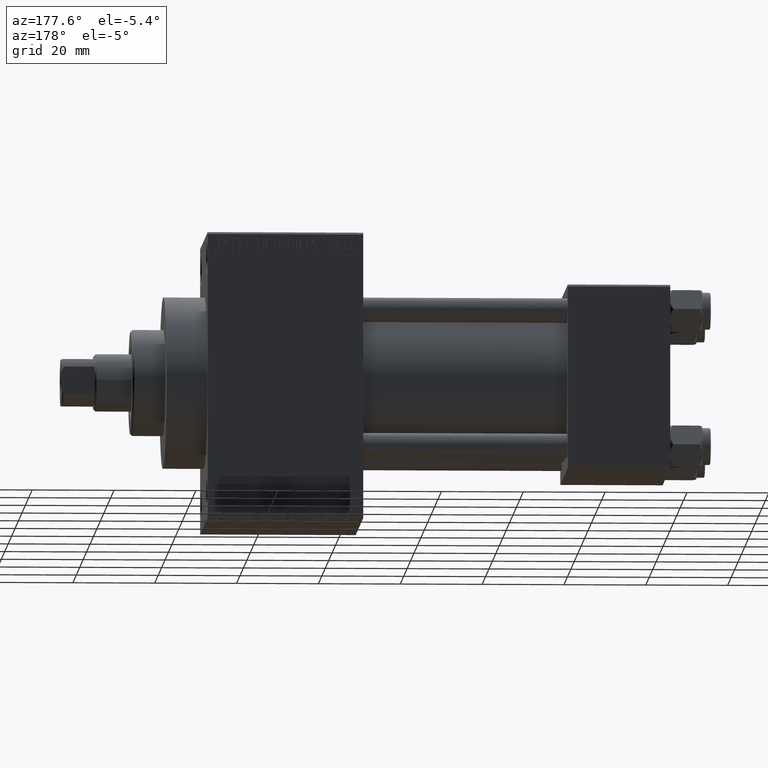
[diagram: clean part render]
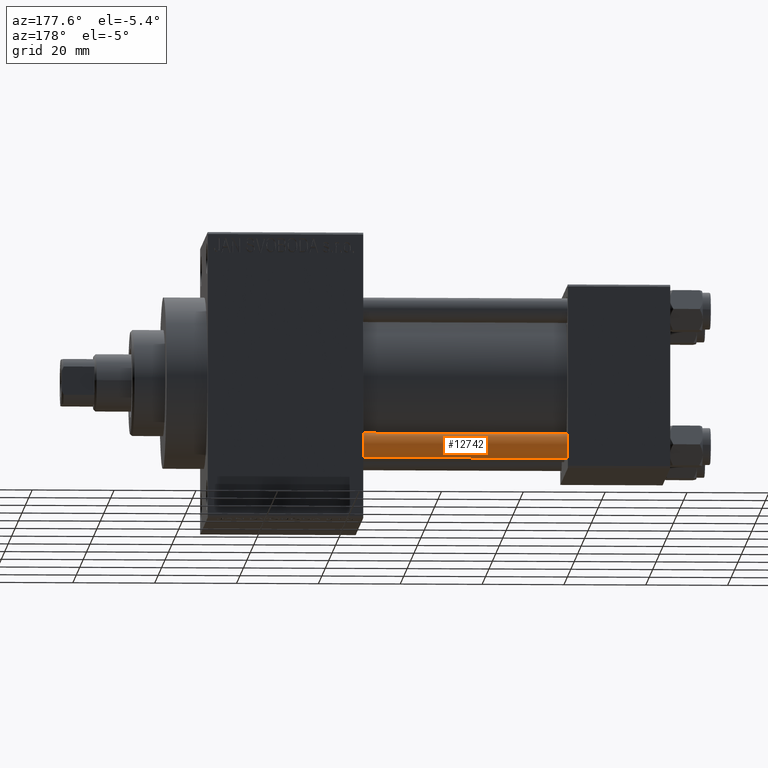
[diagram: same view with one face highlighted and labeled with its STEP entity id]
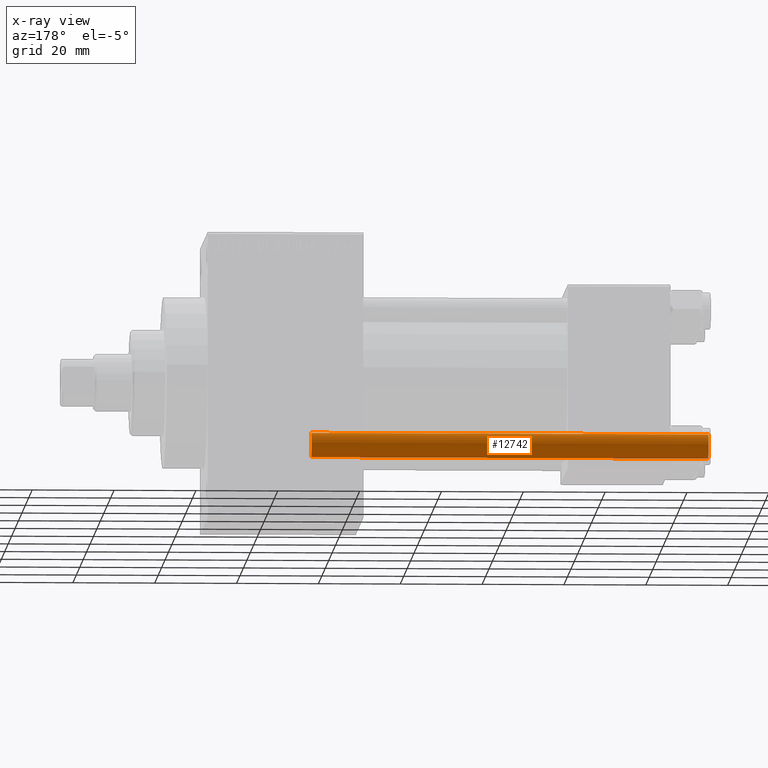
[diagram: x-ray of the same camera — body ghosted, the highlighted face saturated]
A machine part, auxiliary view. The second image highlights one B-rep face of the part: STEP entity #12742.
The next image is the same camera in x-ray: the body ghosted, the highlighted face saturated — about 0% of this face is hidden behind the body in this view.
In plain terms, the highlighted cylindrical surface (edge-blend (fillet) strip) has radius 3 mm, axis along (1, -0, 0).
Its self-contained STEP definition (entity closure, byte-faithful):
#33 = EDGE_LOOP ( 'NONE', ( #23833, #20191, #8630, #34295 ) ) ;
#752 = LINE ( 'NONE', #20198, #26048 ) ;
#2156 = CARTESIAN_POINT ( 'NONE',  ( 3.000000000000000444, 3.673940397442060361E-16, 0.5000000000000281997 ) ) ;
#2458 = CARTESIAN_POINT ( 'NONE',  ( 0.000000000000000000, 0.000000000000000000, 97.50000000000001421 ) ) ;
#3088 = CARTESIAN_POINT ( 'NONE',  ( 3.000000000000000444, 3.673940397442060361E-16, 97.50000000000001421 ) ) ;
#3274 = DIRECTION ( 'NONE',  ( -0.000000000000000000, -0.000000000000000000, -1.000000000000000000 ) ) ;
#3714 = CARTESIAN_POINT ( 'NONE',  ( -3.000000000000000444, 0.000000000000000000, 0.5000000000000281997 ) ) ;
#4648 = DIRECTION ( 'NONE',  ( -1.000000000000000000, 0.000000000000000000, 0.000000000000000000 ) ) ;
#5788 = DIRECTION ( 'NONE',  ( 0.000000000000000000, 0.000000000000000000, -1.000000000000000000 ) ) ;
#7305 = LINE ( 'NONE', #7781, #11336 ) ;
#7781 = CARTESIAN_POINT ( 'NONE',  ( 3.000000000000000444, 3.673940397442060361E-16, 98.00000000000000000 ) ) ;
#7981 = DIRECTION ( 'NONE',  ( -0.000000000000000000, -0.000000000000000000, -1.000000000000000000 ) ) ;
#8467 = CARTESIAN_POINT ( 'NONE',  ( 0.000000000000000000, 0.000000000000000000, 98.00000000000000000 ) ) ;
#8630 = ORIENTED_EDGE ( 'NONE', *, *, #17196, .T. ) ;
#9376 = CARTESIAN_POINT ( 'NONE',  ( 0.000000000000000000, 0.000000000000000000, 0.5000000000000281997 ) ) ;
#11336 = VECTOR ( 'NONE', #3274, 1000.000000000000000 ) ;
#12742 = ADVANCED_FACE ( 'NONE', ( #44443 ), #26572, .T. ) ;
#13651 = DIRECTION ( 'NONE',  ( -0.000000000000000000, -0.000000000000000000, 1.000000000000000000 ) ) ;
#16915 = CIRCLE ( 'NONE', #19965, 3.000000000000000444 ) ;
#17196 = EDGE_CURVE ( 'NONE', #36029, #34687, #16915, .T. ) ;
#17295 = EDGE_CURVE ( 'NONE', #30791, #34687, #752, .T. ) ;
#19965 = AXIS2_PLACEMENT_3D ( 'NONE', #9376, #13651, #23887 ) ;
#20191 = ORIENTED_EDGE ( 'NONE', *, *, #38072, .T. ) ;
#20198 = CARTESIAN_POINT ( 'NONE',  ( -3.000000000000000444, 0.000000000000000000, 98.00000000000000000 ) ) ;
#23833 = ORIENTED_EDGE ( 'NONE', *, *, #36561, .T. ) ;
#23887 = DIRECTION ( 'NONE',  ( 1.000000000000000000, 0.000000000000000000, 0.000000000000000000 ) ) ;
#26048 = VECTOR ( 'NONE', #45482, 1000.000000000000000 ) ;
#26572 = CYLINDRICAL_SURFACE ( 'NONE', #45842, 3.000000000000000444 ) ;
#30791 = VERTEX_POINT ( 'NONE', #31521 ) ;
#31149 = VERTEX_POINT ( 'NONE', #3088 ) ;
#31521 = CARTESIAN_POINT ( 'NONE',  ( -3.000000000000000444, 0.000000000000000000, 97.50000000000001421 ) ) ;
#32621 = CIRCLE ( 'NONE', #42538, 3.000000000000000444 ) ;
#34295 = ORIENTED_EDGE ( 'NONE', *, *, #17295, .F. ) ;
#34687 = VERTEX_POINT ( 'NONE', #3714 ) ;
#36029 = VERTEX_POINT ( 'NONE', #2156 ) ;
#36561 = EDGE_CURVE ( 'NONE', #30791, #31149, #32621, .T. ) ;
#38072 = EDGE_CURVE ( 'NONE', #31149, #36029, #7305, .T. ) ;
#41795 = DIRECTION ( 'NONE',  ( 1.000000000000000000, 0.000000000000000000, 0.000000000000000000 ) ) ;
#42538 = AXIS2_PLACEMENT_3D ( 'NONE', #2458, #5788, #41795 ) ;
#44443 = FACE_OUTER_BOUND ( 'NONE', #33, .T. ) ;
#45482 = DIRECTION ( 'NONE',  ( -0.000000000000000000, -0.000000000000000000, -1.000000000000000000 ) ) ;
#45842 = AXIS2_PLACEMENT_3D ( 'NONE', #8467, #7981, #4648 ) ;